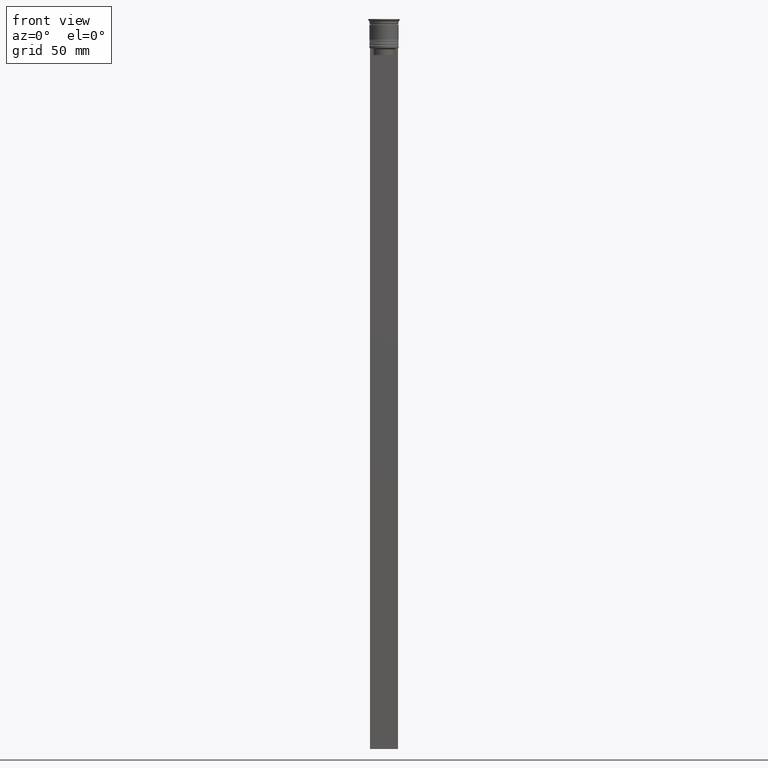
[diagram: clean part render]
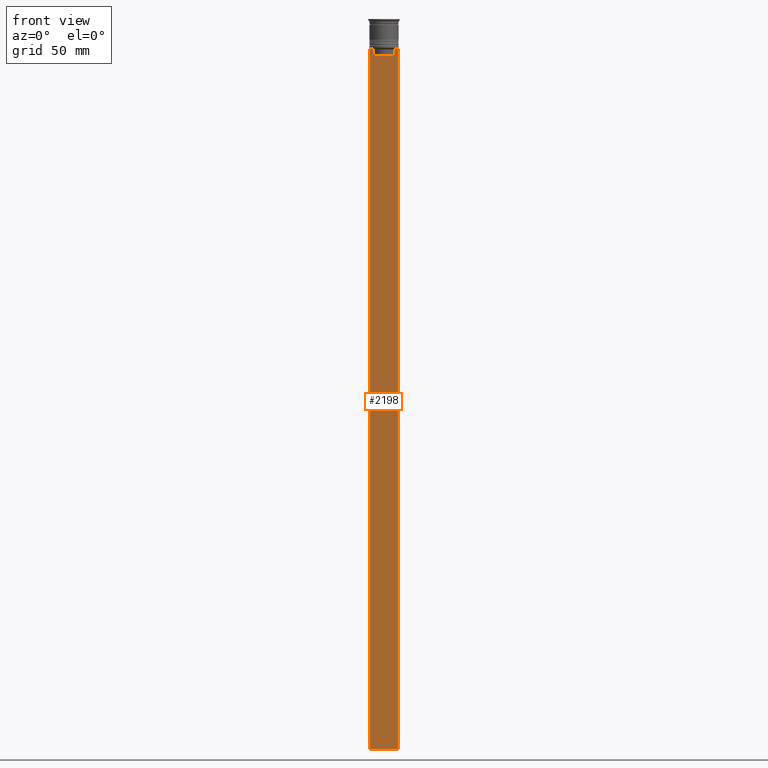
[diagram: same view with one face highlighted and labeled with its STEP entity id]
A machine part, front view. The second image highlights one B-rep face of the part: STEP entity #2198.
In plain terms, the highlighted planar face has unit normal (0, -1, -0).
Its self-contained STEP definition (entity closure, byte-faithful):
#8 = EDGE_CURVE ( 'NONE', #376, #278, #2060, .T. ) ;
#9 = CARTESIAN_POINT ( 'NONE',  ( -4.623040125285526436, -0.5000000000000022204, -15.50000000000000000 ) ) ;
#23 = DIRECTION ( 'NONE',  ( 0.000000000000000000, 0.000000000000000000, -1.000000000000000000 ) ) ;
#39 = ORIENTED_EDGE ( 'NONE', *, *, #2292, .F. ) ;
#198 = EDGE_CURVE ( 'NONE', #1074, #278, #2302, .T. ) ;
#278 = VERTEX_POINT ( 'NONE', #1591 ) ;
#343 = VERTEX_POINT ( 'NONE', #475 ) ;
#350 = VECTOR ( 'NONE', #2128, 1000.000000000000000 ) ;
#376 = VERTEX_POINT ( 'NONE', #1726 ) ;
#379 = DIRECTION ( 'NONE',  ( 0.000000000000000000, 0.000000000000000000, -1.000000000000000000 ) ) ;
#417 = VERTEX_POINT ( 'NONE', #1478 ) ;
#461 = CARTESIAN_POINT ( 'NONE',  ( 5.125670687822231564, -0.5000000000000017764, -12.50000000000000000 ) ) ;
#475 = CARTESIAN_POINT ( 'NONE',  ( 6.000000000000016875, -0.5000000000000017764, -12.50000000000000000 ) ) ;
#478 = VERTEX_POINT ( 'NONE', #1781 ) ;
#495 = VECTOR ( 'NONE', #525, 1000.000000000000000 ) ;
#513 = DIRECTION ( 'NONE',  ( -0.000000000000000000, -0.000000000000000000, 1.000000000000000000 ) ) ;
#525 = DIRECTION ( 'NONE',  ( 1.000000000000000000, 0.000000000000000000, 0.000000000000000000 ) ) ;
#580 = VERTEX_POINT ( 'NONE', #1561 ) ;
#587 = CARTESIAN_POINT ( 'NONE',  ( -5.999999999999983125, -0.5000000000000017764, -12.50000000000000000 ) ) ;
#617 = CARTESIAN_POINT ( 'NONE',  ( 4.958169719475987947, -0.5000000000000017764, -12.66670967060858111 ) ) ;
#622 = ORIENTED_EDGE ( 'NONE', *, *, #1891, .F. ) ;
#634 = ORIENTED_EDGE ( 'NONE', *, *, #198, .T. ) ;
#667 = ORIENTED_EDGE ( 'NONE', *, *, #1034, .F. ) ;
#688 = LINE ( 'NONE', #2129, #1509 ) ;
#799 = CARTESIAN_POINT ( 'NONE',  ( 6.000000000000016875, -0.5000000000000017764, -312.5000000000000000 ) ) ;
#812 = CARTESIAN_POINT ( 'NONE',  ( 4.790630799407577634, -0.5000000000000017764, -12.83338098686238915 ) ) ;
#864 = DIRECTION ( 'NONE',  ( 1.000000000000000000, 0.000000000000000000, 0.000000000000000000 ) ) ;
#936 = LINE ( 'NONE', #1084, #2154 ) ;
#950 = ORIENTED_EDGE ( 'NONE', *, *, #1280, .F. ) ;
#956 = CARTESIAN_POINT ( 'NONE',  ( -5.125670687822231564, -0.5000000000000017764, -12.50000000000000000 ) ) ;
#995 = VERTEX_POINT ( 'NONE', #1798 ) ;
#1034 = EDGE_CURVE ( 'NONE', #343, #376, #2018, .T. ) ;
#1040 = B_SPLINE_CURVE_WITH_KNOTS ( 'NONE', 3,
 ( #956, #1310, #1497, #1676 ),
 .UNSPECIFIED., .F., .F.,
 ( 4, 4 ),
 ( 0.008759809102772709091, 0.009468778395565353653 ),
 .UNSPECIFIED. ) ;
#1068 = AXIS2_PLACEMENT_3D ( 'NONE', #1795, #2330, #1595 ) ;
#1074 = VERTEX_POINT ( 'NONE', #587 ) ;
#1084 = CARTESIAN_POINT ( 'NONE',  ( -4.623040125285526436, -0.5000000000000017764, 0.000000000000000000 ) ) ;
#1094 = CARTESIAN_POINT ( 'NONE',  ( 6.000000000000016875, -0.5000000000000017764, -12.50000000000000000 ) ) ;
#1098 = ORIENTED_EDGE ( 'NONE', *, *, #2046, .F. ) ;
#1109 = EDGE_CURVE ( 'NONE', #417, #2160, #936, .T. ) ;
#1187 = ORIENTED_EDGE ( 'NONE', *, *, #1520, .F. ) ;
#1244 = VECTOR ( 'NONE', #1921, 1000.000000000000000 ) ;
#1268 = FACE_OUTER_BOUND ( 'NONE', #2225, .T. ) ;
#1280 = EDGE_CURVE ( 'NONE', #1662, #417, #1040, .T. ) ;
#1310 = CARTESIAN_POINT ( 'NONE',  ( -4.958169823806760412, -0.5000000000000017764, -12.66670956677067927 ) ) ;
#1397 = LINE ( 'NONE', #1801, #495 ) ;
#1411 = LINE ( 'NONE', #1982, #2266 ) ;
#1466 = ORIENTED_EDGE ( 'NONE', *, *, #1594, .F. ) ;
#1478 = CARTESIAN_POINT ( 'NONE',  ( -4.623040125285526436, -0.5000000000000017764, -13.00000000000000178 ) ) ;
#1497 = CARTESIAN_POINT ( 'NONE',  ( -4.790630915080664742, -0.5000000000000017764, -12.83338087185995491 ) ) ;
#1509 = VECTOR ( 'NONE', #513, 1000.000000000000000 ) ;
#1510 = VECTOR ( 'NONE', #1641, 1000.000000000000000 ) ;
#1520 = EDGE_CURVE ( 'NONE', #1074, #1662, #1411, .T. ) ;
#1548 = CARTESIAN_POINT ( 'NONE',  ( 4.623040125285526436, -0.5000000000000017764, -13.00000000000000178 ) ) ;
#1561 = CARTESIAN_POINT ( 'NONE',  ( 4.623040125285526436, -0.5000000000000022204, -15.50000000000000000 ) ) ;
#1591 = CARTESIAN_POINT ( 'NONE',  ( -5.999999999999983125, -0.5000000000000017764, -312.5000000000000000 ) ) ;
#1594 = EDGE_CURVE ( 'NONE', #2160, #580, #1397, .T. ) ;
#1595 = DIRECTION ( 'NONE',  ( 0.000000000000000000, 0.000000000000000000, -1.000000000000000000 ) ) ;
#1641 = DIRECTION ( 'NONE',  ( 1.000000000000000000, 0.000000000000000000, 0.000000000000000000 ) ) ;
#1653 = CARTESIAN_POINT ( 'NONE',  ( -5.125670687822231564, -0.5000000000000017764, -12.50000000000000000 ) ) ;
#1662 = VERTEX_POINT ( 'NONE', #1653 ) ;
#1668 = ORIENTED_EDGE ( 'NONE', *, *, #1109, .F. ) ;
#1676 = CARTESIAN_POINT ( 'NONE',  ( -4.623040125285526436, -0.5000000000000017764, -13.00000000000000178 ) ) ;
#1726 = CARTESIAN_POINT ( 'NONE',  ( 6.000000000000016875, -0.5000000000000017764, -312.5000000000000000 ) ) ;
#1781 = CARTESIAN_POINT ( 'NONE',  ( 4.623040125285526436, -0.5000000000000017764, -13.00000000000000178 ) ) ;
#1795 = CARTESIAN_POINT ( 'NONE',  ( 6.000000000000016875, -0.5000000000000017764, -0.4584054212077061097 ) ) ;
#1798 = CARTESIAN_POINT ( 'NONE',  ( 5.125670687822231564, -0.5000000000000017764, -12.50000000000000000 ) ) ;
#1801 = CARTESIAN_POINT ( 'NONE',  ( 0.000000000000000000, -0.5000000000000022204, -15.50000000000000000 ) ) ;
#1816 = VECTOR ( 'NONE', #379, 1000.000000000000000 ) ;
#1891 = EDGE_CURVE ( 'NONE', #478, #995, #2164, .T. ) ;
#1921 = DIRECTION ( 'NONE',  ( -1.000000000000000000, 0.000000000000000000, 0.000000000000000000 ) ) ;
#1982 = CARTESIAN_POINT ( 'NONE',  ( 6.000000000000016875, -0.5000000000000017764, -12.50000000000000000 ) ) ;
#1989 = CARTESIAN_POINT ( 'NONE',  ( -5.999999999999983125, -0.5000000000000017764, -0.4584054212077061097 ) ) ;
#1996 = CARTESIAN_POINT ( 'NONE',  ( 6.000000000000016875, -0.5000000000000017764, -0.4584054212077061097 ) ) ;
#2018 = LINE ( 'NONE', #1996, #1816 ) ;
#2046 = EDGE_CURVE ( 'NONE', #580, #478, #688, .T. ) ;
#2060 = LINE ( 'NONE', #799, #1244 ) ;
#2072 = ORIENTED_EDGE ( 'NONE', *, *, #8, .F. ) ;
#2115 = LINE ( 'NONE', #1094, #1510 ) ;
#2128 = DIRECTION ( 'NONE',  ( 0.000000000000000000, 0.000000000000000000, -1.000000000000000000 ) ) ;
#2129 = CARTESIAN_POINT ( 'NONE',  ( 4.623040125285526436, -0.5000000000000017764, 0.000000000000000000 ) ) ;
#2154 = VECTOR ( 'NONE', #23, 1000.000000000000000 ) ;
#2160 = VERTEX_POINT ( 'NONE', #9 ) ;
#2164 = B_SPLINE_CURVE_WITH_KNOTS ( 'NONE', 3,
 ( #1548, #812, #617, #461 ),
 .UNSPECIFIED., .F., .F.,
 ( 4, 4 ),
 ( 0.02203698174624552780, 0.02275222543365896383 ),
 .UNSPECIFIED. ) ;
#2198 = ADVANCED_FACE ( 'NONE', ( #1268 ), #2312, .T. ) ;
#2225 = EDGE_LOOP ( 'NONE', ( #950, #1187, #634, #2072, #667, #39, #622, #1098, #1466, #1668 ) ) ;
#2266 = VECTOR ( 'NONE', #864, 1000.000000000000000 ) ;
#2292 = EDGE_CURVE ( 'NONE', #995, #343, #2115, .T. ) ;
#2302 = LINE ( 'NONE', #1989, #350 ) ;
#2312 = PLANE ( 'NONE',  #1068 ) ;
#2330 = DIRECTION ( 'NONE',  ( 0.000000000000000000, -1.000000000000000000, -0.000000000000000000 ) ) ;